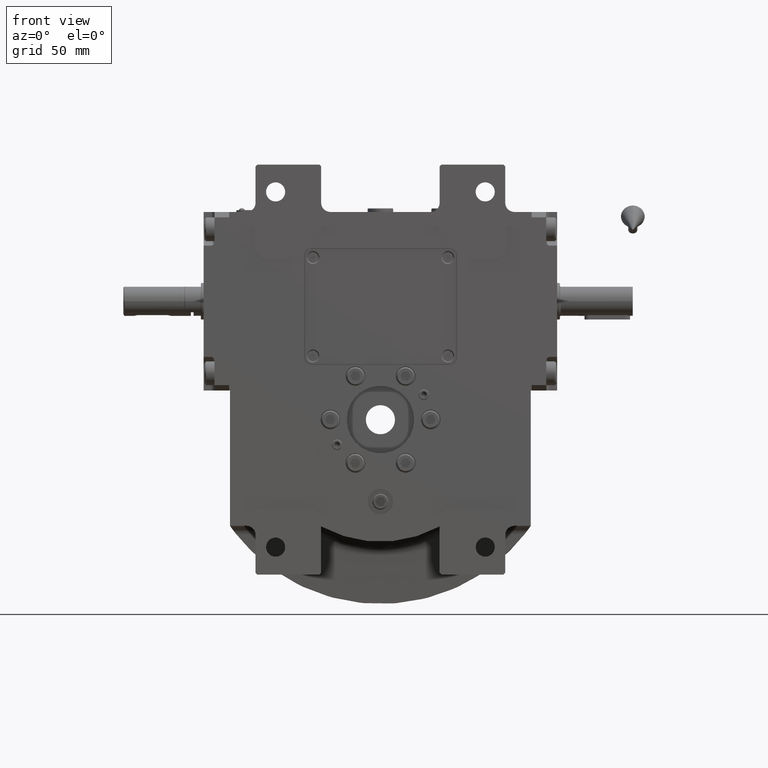
[diagram: clean part render]
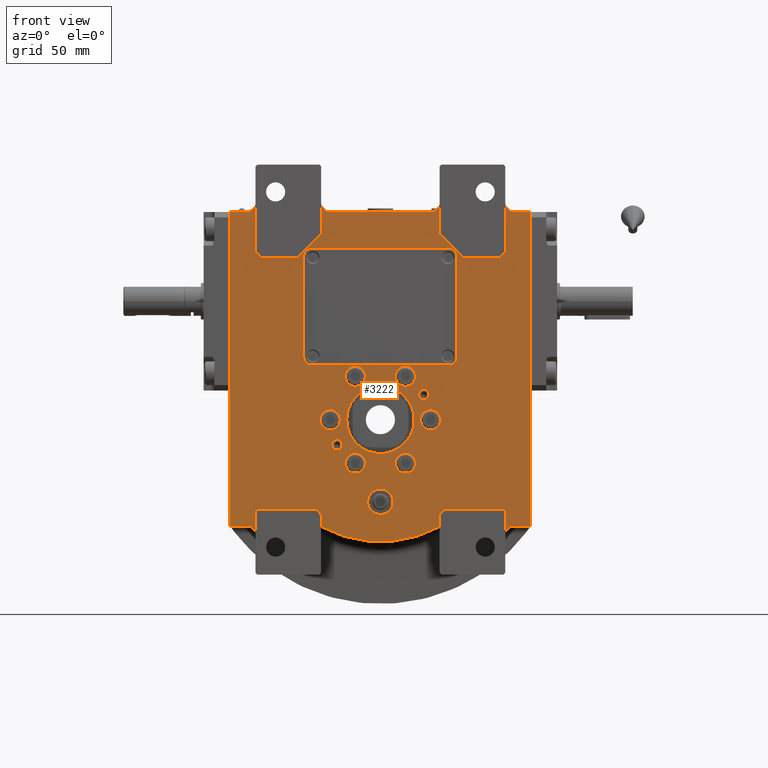
[diagram: same view with one face highlighted and labeled with its STEP entity id]
A machine part, front view. The second image highlights one B-rep face of the part: STEP entity #3222.
In plain terms, the highlighted planar face has unit normal (0, 1, 0).
Its self-contained STEP definition (entity closure, byte-faithful):
#24 = CARTESIAN_POINT ( 'NONE',  ( 42.00000000000000000, -40.50000000000000000, 90.00000000000000000 ) ) ;
#245 = EDGE_CURVE ( 'NONE', #5190, #40231, #46490, .T. ) ;
#247 = DIRECTION ( 'NONE',  ( 0.000000000000000000, -1.000000000000000000, 0.000000000000000000 ) ) ;
#300 = VERTEX_POINT ( 'NONE', #8286 ) ;
#379 = VECTOR ( 'NONE', #11559, 1000.000000000000000 ) ;
#474 = LINE ( 'NONE', #55943, #31714 ) ;
#592 = CARTESIAN_POINT ( 'NONE',  ( -68.50000000000000000, -40.50000000000000000, 119.0000000000000000 ) ) ;
#600 = ORIENTED_EDGE ( 'NONE', *, *, #63679, .F. ) ;
#713 = DIRECTION ( 'NONE',  ( 0.000000000000000000, -1.000000000000000000, 0.000000000000000000 ) ) ;
#848 = LINE ( 'NONE', #12011, #69769 ) ;
#873 = CARTESIAN_POINT ( 'NONE',  ( 21.06569860407205041, -40.50000000000000000, 13.75000000000000000 ) ) ;
#1004 = DIRECTION ( 'NONE',  ( 1.000000000000000000, 0.000000000000000000, -6.308085367188389255E-16 ) ) ;
#1011 = LINE ( 'NONE', #29472, #27171 ) ;
#1086 = DIRECTION ( 'NONE',  ( 0.7071067811865474617, 0.000000000000000000, -0.7071067811865474617 ) ) ;
#1091 = VERTEX_POINT ( 'NONE', #26213 ) ;
#1191 = CIRCLE ( 'NONE', #26494, 5.000000000000004441 ) ;
#1262 = DIRECTION ( 'NONE',  ( 0.000000000000000000, -1.000000000000000000, 0.000000000000000000 ) ) ;
#1547 = ORIENTED_EDGE ( 'NONE', *, *, #245, .F. ) ;
#1940 = CARTESIAN_POINT ( 'NONE',  ( -45.49999999999939604, -40.50000000000000000, 89.00000000000000000 ) ) ;
#1996 = ORIENTED_EDGE ( 'NONE', *, *, #22849, .F. ) ;
#1999 = CARTESIAN_POINT ( 'NONE',  ( -67.50000000000000000, -40.50000000000000000, -49.00000000000000000 ) ) ;
#2651 = EDGE_LOOP ( 'NONE', ( #54769, #46704 ) ) ;
#2800 = AXIS2_PLACEMENT_3D ( 'NONE', #61863, #39553, #6763 ) ;
#2809 = CARTESIAN_POINT ( 'NONE',  ( 13.75000000000000000, -40.50000000000000000, -23.81569860407205397 ) ) ;
#2886 = DIRECTION ( 'NONE',  ( -1.000000000000000000, 0.000000000000000000, -3.840771544649190407E-16 ) ) ;
#3024 = DIRECTION ( 'NONE',  ( 3.469446951953611033E-15, 0.000000000000000000, 1.000000000000000000 ) ) ;
#3152 = CIRCLE ( 'NONE', #49182, 5.000000000000004441 ) ;
#3222 = ADVANCED_FACE ( 'NONE', ( #50575, #12407, #12750, #13114, #67131, #45869, #23191, #34746, #39791, #23552, #18154, #17801 ), #22489, .F. ) ;
#3249 = VERTEX_POINT ( 'NONE', #69612 ) ;
#3368 = DIRECTION ( 'NONE',  ( -1.000000000000000000, 0.000000000000000000, 0.000000000000000000 ) ) ;
#3659 = AXIS2_PLACEMENT_3D ( 'NONE', #51677, #30802, #46653 ) ;
#3665 = DIRECTION ( 'NONE',  ( 1.000000000000000000, 0.000000000000000000, 1.614869854000229219E-16 ) ) ;
#3960 = AXIS2_PLACEMENT_3D ( 'NONE', #17941, #6772, #56460 ) ;
#4133 = VECTOR ( 'NONE', #34706, 1000.000000000000000 ) ;
#4147 = ORIENTED_EDGE ( 'NONE', *, *, #37273, .F. ) ;
#4193 = VERTEX_POINT ( 'NONE', #59979 ) ;
#4197 = CARTESIAN_POINT ( 'NONE',  ( 73.50000000000000000, -40.50000000000000000, -63.26448317800490173 ) ) ;
#4243 = ORIENTED_EDGE ( 'NONE', *, *, #30591, .F. ) ;
#4405 = ORIENTED_EDGE ( 'NONE', *, *, #27927, .F. ) ;
#4411 = LINE ( 'NONE', #42959, #18126 ) ;
#4423 = CARTESIAN_POINT ( 'NONE',  ( 68.50000000000000000, -40.50000000000000000, -50.00000000000000000 ) ) ;
#4526 = DIRECTION ( 'NONE',  ( 0.000000000000000000, 0.000000000000000000, -1.000000000000000000 ) ) ;
#4605 = ORIENTED_EDGE ( 'NONE', *, *, #51840, .F. ) ;
#4628 = CIRCLE ( 'NONE', #51771, 5.500000000000000000 ) ;
#4698 = CARTESIAN_POINT ( 'NONE',  ( 73.50000000000000000, -40.50000000000000000, -58.26448317800490173 ) ) ;
#5058 = VECTOR ( 'NONE', #70704, 1000.000000000000000 ) ;
#5190 = VERTEX_POINT ( 'NONE', #66965 ) ;
#5231 = CARTESIAN_POINT ( 'NONE',  ( 45.49999999999939604, -40.50000000000000000, 89.00000000000000000 ) ) ;
#5318 = DIRECTION ( 'NONE',  ( -1.000000000000000000, 0.000000000000000000, -1.614869854000229219E-16 ) ) ;
#5377 = VERTEX_POINT ( 'NONE', #17417 ) ;
#5668 = VECTOR ( 'NONE', #23029, 1000.000000000000000 ) ;
#5687 = CARTESIAN_POINT ( 'NONE',  ( 82.50000000000000000, -40.50000000000000000, -58.26448317800490173 ) ) ;
#5745 = AXIS2_PLACEMENT_3D ( 'NONE', #64246, #36894, #21027 ) ;
#5849 = VERTEX_POINT ( 'NONE', #53936 ) ;
#5906 = VERTEX_POINT ( 'NONE', #9652 ) ;
#5987 = DIRECTION ( 'NONE',  ( -0.4850746268656720428, 0.000000000000000000, -0.8744727590789371785 ) ) ;
#6015 = ORIENTED_EDGE ( 'NONE', *, *, #63633, .F. ) ;
#6087 = CIRCLE ( 'NONE', #54435, 5.500000000000000000 ) ;
#6267 = VERTEX_POINT ( 'NONE', #42692 ) ;
#6490 = ORIENTED_EDGE ( 'NONE', *, *, #49795, .T. ) ;
#6598 = DIRECTION ( 'NONE',  ( 0.7071067811865474617, 0.000000000000000000, 0.7071067811865474617 ) ) ;
#6733 = VECTOR ( 'NONE', #24688, 1000.000000000000000 ) ;
#6763 = DIRECTION ( 'NONE',  ( -1.000000000000000000, 0.000000000000000000, 0.000000000000000000 ) ) ;
#6772 = DIRECTION ( 'NONE',  ( 0.000000000000000000, 1.000000000000000000, 0.000000000000000000 ) ) ;
#6824 = EDGE_LOOP ( 'NONE', ( #4243, #4405 ) ) ;
#7058 = AXIS2_PLACEMENT_3D ( 'NONE', #26217, #247, #5318 ) ;
#7128 = CARTESIAN_POINT ( 'NONE',  ( 32.50000000000000000, -40.50000000000000000, -52.00000000000000000 ) ) ;
#7365 = EDGE_CURVE ( 'NONE', #3249, #58836, #46698, .T. ) ;
#7523 = CARTESIAN_POINT ( 'NONE',  ( 0.000000000000000000, -40.50000000000000000, 1.776356839400249676E-15 ) ) ;
#7618 = EDGE_CURVE ( 'NONE', #58836, #65277, #10630, .T. ) ;
#7709 = ORIENTED_EDGE ( 'NONE', *, *, #57063, .T. ) ;
#7790 = EDGE_CURVE ( 'NONE', #70838, #59808, #50571, .T. ) ;
#7803 = VERTEX_POINT ( 'NONE', #51634 ) ;
#7932 = CARTESIAN_POINT ( 'NONE',  ( -42.00000000000000000, -40.50000000000000000, 34.00000000000000000 ) ) ;
#8278 = LINE ( 'NONE', #64079, #40953 ) ;
#8286 = CARTESIAN_POINT ( 'NONE',  ( -82.50000000000000000, -40.50000000000000000, 114.0000000000000000 ) ) ;
#8381 = CARTESIAN_POINT ( 'NONE',  ( 67.50000000000000000, -40.50000000000000000, -49.00000000000000000 ) ) ;
#8512 = EDGE_CURVE ( 'NONE', #59808, #5377, #25589, .T. ) ;
#8520 = ORIENTED_EDGE ( 'NONE', *, *, #19499, .F. ) ;
#8535 = DIRECTION ( 'NONE',  ( 0.000000000000000000, 0.000000000000000000, 1.000000000000000000 ) ) ;
#8542 = CARTESIAN_POINT ( 'NONE',  ( -32.50000000000000000, -40.50000000000000000, -58.58967485828879518 ) ) ;
#8557 = EDGE_CURVE ( 'NONE', #6267, #56995, #50232, .T. ) ;
#8720 = DIRECTION ( 'NONE',  ( 0.000000000000000000, 1.000000000000000000, 0.000000000000000000 ) ) ;
#8821 = AXIS2_PLACEMENT_3D ( 'NONE', #37726, #38060, #5987 ) ;
#8941 = EDGE_CURVE ( 'NONE', #31464, #24775, #47135, .T. ) ;
#8955 = AXIS2_PLACEMENT_3D ( 'NONE', #34927, #56887, #46071 ) ;
#8992 = DIRECTION ( 'NONE',  ( 0.000000000000000000, 0.000000000000000000, 1.000000000000000000 ) ) ;
#9026 = EDGE_LOOP ( 'NONE', ( #12116, #36599 ) ) ;
#9090 = CARTESIAN_POINT ( 'NONE',  ( -68.50000000000000000, -40.50000000000000000, -63.26448317800490173 ) ) ;
#9155 = CARTESIAN_POINT ( 'NONE',  ( 38.00000000000000000, -40.50000000000000000, 94.00000000000000000 ) ) ;
#9479 = VECTOR ( 'NONE', #10995, 1000.000000000000000 ) ;
#9486 = VECTOR ( 'NONE', #1086, 1000.000000000000114 ) ;
#9619 = DIRECTION ( 'NONE',  ( 1.000000000000000000, 0.000000000000000000, 0.000000000000000000 ) ) ;
#9652 = CARTESIAN_POINT ( 'NONE',  ( -8.250000000000000000, -40.50000000000000000, 23.81569860407205397 ) ) ;
#9667 = LINE ( 'NONE', #10038, #58989 ) ;
#9774 = CARTESIAN_POINT ( 'NONE',  ( 73.50000000000000000, -40.50000000000000000, 119.0000000000000000 ) ) ;
#10038 = CARTESIAN_POINT ( 'NONE',  ( -27.49999999999934630, -40.50000000000000000, 114.0000000000000000 ) ) ;
#10115 = VERTEX_POINT ( 'NONE', #64983 ) ;
#10155 = CARTESIAN_POINT ( 'NONE',  ( 27.50000000000000000, -40.50000000000000000, -8.881784197001250351E-16 ) ) ;
#10453 = VECTOR ( 'NONE', #38983, 1000.000000000000000 ) ;
#10630 = LINE ( 'NONE', #5231, #9479 ) ;
#10643 = VERTEX_POINT ( 'NONE', #30730 ) ;
#10648 = VERTEX_POINT ( 'NONE', #9090 ) ;
#10652 = ORIENTED_EDGE ( 'NONE', *, *, #27456, .F. ) ;
#10822 = CARTESIAN_POINT ( 'NONE',  ( 13.75000000000000000, -40.50000000000000000, 23.81569860407205397 ) ) ;
#10995 = DIRECTION ( 'NONE',  ( 1.000000000000000000, 0.000000000000000000, 0.000000000000000000 ) ) ;
#11045 = LINE ( 'NONE', #64705, #13382 ) ;
#11386 = CARTESIAN_POINT ( 'NONE',  ( -13.75000000000000000, -40.50000000000000000, -23.81569860407205397 ) ) ;
#11399 = CARTESIAN_POINT ( 'NONE',  ( 45.49999999999939604, -40.50000000000000000, 89.00000000000000000 ) ) ;
#11441 = CARTESIAN_POINT ( 'NONE',  ( -19.25000000000000000, -40.50000000000000000, -23.81569860407205397 ) ) ;
#11559 = DIRECTION ( 'NONE',  ( 0.000000000000000000, 0.000000000000000000, -1.000000000000000000 ) ) ;
#11603 = CARTESIAN_POINT ( 'NONE',  ( 42.00000000000000000, -40.50000000000000000, 34.00000000000000000 ) ) ;
#11662 = ORIENTED_EDGE ( 'NONE', *, *, #31459, .F. ) ;
#11740 = VERTEX_POINT ( 'NONE', #18469 ) ;
#11809 = VERTEX_POINT ( 'NONE', #43309 ) ;
#11833 = DIRECTION ( 'NONE',  ( 0.000000000000000000, -1.000000000000000000, 0.000000000000000000 ) ) ;
#11873 = DIRECTION ( 'NONE',  ( -1.000000000000000000, 0.000000000000000000, -6.459479416000907016E-16 ) ) ;
#12011 = CARTESIAN_POINT ( 'NONE',  ( 82.50000000000000000, -40.50000000000000000, 114.0000000000000000 ) ) ;
#12116 = ORIENTED_EDGE ( 'NONE', *, *, #28278, .T. ) ;
#12219 = VERTEX_POINT ( 'NONE', #56943 ) ;
#12407 = FACE_OUTER_BOUND ( 'NONE', #28026, .T. ) ;
#12517 = CARTESIAN_POINT ( 'NONE',  ( -7.000000000000000000, -40.50000000000000000, -45.00000000000000000 ) ) ;
#12586 = VERTEX_POINT ( 'NONE', #70119 ) ;
#12712 = LINE ( 'NONE', #8381, #4133 ) ;
#12750 = FACE_BOUND ( 'NONE', #17845, .T. ) ;
#12820 = EDGE_CURVE ( 'NONE', #62971, #68017, #58142, .T. ) ;
#12965 = CARTESIAN_POINT ( 'NONE',  ( 1.776356839400249676E-15, -40.50000000000000000, 7.105427357600998703E-15 ) ) ;
#13114 = FACE_BOUND ( 'NONE', #9026, .T. ) ;
#13295 = CARTESIAN_POINT ( 'NONE',  ( 42.00000000000000000, -40.50000000000000000, 34.00000000000000000 ) ) ;
#13382 = VECTOR ( 'NONE', #9619, 1000.000000000000000 ) ;
#14074 = VERTEX_POINT ( 'NONE', #23921 ) ;
#14291 = AXIS2_PLACEMENT_3D ( 'NONE', #35943, #20672, #57903 ) ;
#14694 = DIRECTION ( 'NONE',  ( -1.734723475976807094E-15, 0.000000000000000000, -1.000000000000000000 ) ) ;
#14794 = DIRECTION ( 'NONE',  ( 0.000000000000000000, 0.000000000000000000, 1.000000000000000000 ) ) ;
#15025 = ORIENTED_EDGE ( 'NONE', *, *, #65466, .F. ) ;
#15081 = AXIS2_PLACEMENT_3D ( 'NONE', #53593, #30215, #14694 ) ;
#15122 = AXIS2_PLACEMENT_3D ( 'NONE', #33677, #45537, #18494 ) ;
#15633 = ORIENTED_EDGE ( 'NONE', *, *, #58756, .T. ) ;
#15746 = CARTESIAN_POINT ( 'NONE',  ( -82.50000000000000000, -40.50000000000000000, -58.26448317800490173 ) ) ;
#15861 = ORIENTED_EDGE ( 'NONE', *, *, #8512, .F. ) ;
#15912 = ORIENTED_EDGE ( 'NONE', *, *, #36651, .F. ) ;
#15947 = LINE ( 'NONE', #71017, #10453 ) ;
#15992 = DIRECTION ( 'NONE',  ( 0.000000000000000000, 1.000000000000000000, 0.000000000000000000 ) ) ;
#16034 = EDGE_CURVE ( 'NONE', #300, #5849, #26701, .T. ) ;
#16261 = CARTESIAN_POINT ( 'NONE',  ( -38.00000000000000000, -40.50000000000000000, 30.00000000000000000 ) ) ;
#16695 = EDGE_CURVE ( 'NONE', #11740, #5849, #35032, .T. ) ;
#16914 = VECTOR ( 'NONE', #20945, 1000.000000000000000 ) ;
#16974 = LINE ( 'NONE', #28495, #38634 ) ;
#17072 = VECTOR ( 'NONE', #17148, 1000.000000000000000 ) ;
#17075 = CIRCLE ( 'NONE', #23955, 5.500000000000000000 ) ;
#17148 = DIRECTION ( 'NONE',  ( 0.000000000000000000, 0.000000000000000000, -1.000000000000000000 ) ) ;
#17417 = CARTESIAN_POINT ( 'NONE',  ( -32.49999999999934630, -40.50000000000000000, 119.0000000000000000 ) ) ;
#17500 = AXIS2_PLACEMENT_3D ( 'NONE', #53713, #24934, #63433 ) ;
#17549 = VECTOR ( 'NONE', #4526, 1000.000000000000000 ) ;
#17801 = FACE_BOUND ( 'NONE', #44447, .T. ) ;
#17845 = EDGE_LOOP ( 'NONE', ( #69452, #67715, #17958, #66331, #1996, #45579, #67989, #6015 ) ) ;
#17941 = CARTESIAN_POINT ( 'NONE',  ( -73.50000000000000000, -40.50000000000000000, 119.0000000000000000 ) ) ;
#17958 = ORIENTED_EDGE ( 'NONE', *, *, #37854, .F. ) ;
#18126 = VECTOR ( 'NONE', #8992, 1000.000000000000000 ) ;
#18154 = FACE_BOUND ( 'NONE', #44518, .T. ) ;
#18194 = EDGE_CURVE ( 'NONE', #5906, #46955, #67181, .T. ) ;
#18351 = EDGE_CURVE ( 'NONE', #24775, #7803, #63738, .T. ) ;
#18469 = CARTESIAN_POINT ( 'NONE',  ( -68.50000000000000000, -40.50000000000000000, 119.0000000000000000 ) ) ;
#18494 = DIRECTION ( 'NONE',  ( 1.000000000000000000, 0.000000000000000000, 0.000000000000000000 ) ) ;
#18577 = DIRECTION ( 'NONE',  ( 0.7071067811865474617, 0.000000000000000000, -0.7071067811865474617 ) ) ;
#18995 = CARTESIAN_POINT ( 'NONE',  ( 32.50000000000000000, -40.50000000000000000, -52.00000000000000000 ) ) ;
#19056 = CARTESIAN_POINT ( 'NONE',  ( -68.50000000000000000, -40.50000000000000000, 92.00000000000000000 ) ) ;
#19499 = EDGE_CURVE ( 'NONE', #40970, #42236, #22977, .T. ) ;
#19509 = VECTOR ( 'NONE', #48002, 1000.000000000000000 ) ;
#20294 = CARTESIAN_POINT ( 'NONE',  ( -32.50000000000000000, -40.50000000000000000, -52.00000000000000000 ) ) ;
#20672 = DIRECTION ( 'NONE',  ( 0.000000000000000000, -1.000000000000000000, 0.000000000000000000 ) ) ;
#20945 = DIRECTION ( 'NONE',  ( 0.000000000000000000, 0.000000000000000000, -1.000000000000000000 ) ) ;
#21027 = DIRECTION ( 'NONE',  ( 0.000000000000000000, 0.000000000000000000, 1.000000000000000000 ) ) ;
#21519 = VERTEX_POINT ( 'NONE', #59951 ) ;
#21595 = CARTESIAN_POINT ( 'NONE',  ( -35.50000000000000000, -40.50000000000000000, -49.00000000000000000 ) ) ;
#21723 = CARTESIAN_POINT ( 'NONE',  ( -27.50000000000000000, -40.50000000000000000, 3.552713678800499352E-15 ) ) ;
#22069 = EDGE_CURVE ( 'NONE', #39486, #21519, #4411, .T. ) ;
#22254 = CARTESIAN_POINT ( 'NONE',  ( 67.50000000000000000, -40.50000000000000000, -49.00000000000000000 ) ) ;
#22429 = DIRECTION ( 'NONE',  ( 1.000000000000000000, 0.000000000000000000, -6.459479416000907016E-16 ) ) ;
#22477 = ORIENTED_EDGE ( 'NONE', *, *, #60850, .F. ) ;
#22489 = PLANE ( 'NONE',  #15122 ) ;
#22546 = VERTEX_POINT ( 'NONE', #5687 ) ;
#22639 = VECTOR ( 'NONE', #63810, 1000.000000000000000 ) ;
#22835 = EDGE_LOOP ( 'NONE', ( #71198, #42033 ) ) ;
#22849 = EDGE_CURVE ( 'NONE', #7803, #61791, #48766, .T. ) ;
#22977 = LINE ( 'NONE', #7128, #43147 ) ;
#23029 = DIRECTION ( 'NONE',  ( 0.000000000000000000, 0.000000000000000000, 1.000000000000000000 ) ) ;
#23191 = FACE_BOUND ( 'NONE', #6824, .T. ) ;
#23232 = CIRCLE ( 'NONE', #63493, 18.50000000000000000 ) ;
#23268 = VERTEX_POINT ( 'NONE', #58764 ) ;
#23316 = DIRECTION ( 'NONE',  ( -0.7071067811865474617, 0.000000000000000000, 0.7071067811865474617 ) ) ;
#23552 = FACE_BOUND ( 'NONE', #40199, .T. ) ;
#23649 = CIRCLE ( 'NONE', #58178, 5.500000000000001776 ) ;
#23689 = CARTESIAN_POINT ( 'NONE',  ( -13.75000000000000000, -40.50000000000000000, 23.81569860407205397 ) ) ;
#23921 = CARTESIAN_POINT ( 'NONE',  ( -42.00000000000000000, -40.50000000000000000, 90.00000000000000000 ) ) ;
#23955 = AXIS2_PLACEMENT_3D ( 'NONE', #26052, #42623, #3368 ) ;
#24342 = DIRECTION ( 'NONE',  ( 0.000000000000000000, 1.000000000000000000, 0.000000000000000000 ) ) ;
#24522 = ORIENTED_EDGE ( 'NONE', *, *, #18194, .F. ) ;
#24629 = AXIS2_PLACEMENT_3D ( 'NONE', #23689, #11833, #1004 ) ;
#24688 = DIRECTION ( 'NONE',  ( 0.000000000000000000, 0.000000000000000000, 1.000000000000000000 ) ) ;
#24709 = CIRCLE ( 'NONE', #29161, 2.749999999999999112 ) ;
#24739 = CIRCLE ( 'NONE', #59249, 5.500000000000001776 ) ;
#24775 = VERTEX_POINT ( 'NONE', #24 ) ;
#24785 = CARTESIAN_POINT ( 'NONE',  ( -45.49999999999939604, -40.50000000000000000, 89.00000000000000000 ) ) ;
#24934 = DIRECTION ( 'NONE',  ( 0.000000000000000000, -1.000000000000000000, 0.000000000000000000 ) ) ;
#25035 = CARTESIAN_POINT ( 'NONE',  ( 68.50000000000000000, -40.50000000000000000, -63.26448317800490173 ) ) ;
#25142 = AXIS2_PLACEMENT_3D ( 'NONE', #25599, #35719, #52645 ) ;
#25149 = DIRECTION ( 'NONE',  ( 0.000000000000000000, -1.000000000000000000, 0.000000000000000000 ) ) ;
#25162 = ORIENTED_EDGE ( 'NONE', *, *, #56811, .T. ) ;
#25264 = EDGE_CURVE ( 'NONE', #1091, #51599, #1011, .T. ) ;
#25328 = CARTESIAN_POINT ( 'NONE',  ( -38.00000000000000000, -40.50000000000000000, 90.00000000000000000 ) ) ;
#25352 = VERTEX_POINT ( 'NONE', #50367 ) ;
#25475 = DIRECTION ( 'NONE',  ( -1.000000000000000000, 0.000000000000000000, 0.000000000000000000 ) ) ;
#25589 = LINE ( 'NONE', #30683, #46133 ) ;
#25599 = CARTESIAN_POINT ( 'NONE',  ( -13.75000000000000000, -40.50000000000000000, -23.81569860407205397 ) ) ;
#25647 = EDGE_CURVE ( 'NONE', #49327, #42236, #39869, .T. ) ;
#25704 = CARTESIAN_POINT ( 'NONE',  ( 18.50000000000000000, -40.50000000000000000, 8.266386305024620034E-16 ) ) ;
#25839 = CIRCLE ( 'NONE', #2800, 5.500000000000000000 ) ;
#26052 = CARTESIAN_POINT ( 'NONE',  ( 13.75000000000000000, -40.50000000000000000, 23.81569860407205397 ) ) ;
#26213 = CARTESIAN_POINT ( 'NONE',  ( -65.50000000000000000, -40.50000000000000000, 89.00000000000000000 ) ) ;
#26217 = CARTESIAN_POINT ( 'NONE',  ( 27.50000000000000000, -40.50000000000000000, 8.881784197001250351E-16 ) ) ;
#26377 = ORIENTED_EDGE ( 'NONE', *, *, #45074, .F. ) ;
#26494 = AXIS2_PLACEMENT_3D ( 'NONE', #4197, #44141, #59302 ) ;
#26533 = DIRECTION ( 'NONE',  ( 1.000000000000000000, 0.000000000000000000, 0.000000000000000000 ) ) ;
#26571 = DIRECTION ( 'NONE',  ( 1.000000000000000000, 0.000000000000000000, 0.000000000000000000 ) ) ;
#26693 = VERTEX_POINT ( 'NONE', #4698 ) ;
#26701 = LINE ( 'NONE', #48682, #22639 ) ;
#26846 = LINE ( 'NONE', #69714, #17549 ) ;
#27171 = VECTOR ( 'NONE', #23316, 1000.000000000000114 ) ;
#27277 = DIRECTION ( 'NONE',  ( -1.000000000000000000, 0.000000000000000000, -1.261617073437678245E-15 ) ) ;
#27456 = EDGE_CURVE ( 'NONE', #56995, #6267, #17075, .T. ) ;
#27665 = ORIENTED_EDGE ( 'NONE', *, *, #66072, .T. ) ;
#27927 = EDGE_CURVE ( 'NONE', #32480, #10115, #35552, .T. ) ;
#28026 = EDGE_LOOP ( 'NONE', ( #54840, #11662, #28771, #28147, #27665, #62849, #49385, #54185, #52313, #45004, #6490, #4605, #63742, #15861, #47341, #41168, #46093, #70817, #69695, #38285, #30631, #15633, #37410, #54974, #66041, #44233, #52983, #30595, #62301, #8520, #25162, #60434, #7709, #26377 ) ) ;
#28147 = ORIENTED_EDGE ( 'NONE', *, *, #42519, .F. ) ;
#28278 = EDGE_CURVE ( 'NONE', #54718, #12586, #41161, .T. ) ;
#28495 = CARTESIAN_POINT ( 'NONE',  ( 68.50000000000000000, -40.50000000000000000, 92.00000000000000000 ) ) ;
#28564 = DIRECTION ( 'NONE',  ( -3.299775891822714988E-16, 0.000000000000000000, -1.000000000000000000 ) ) ;
#28771 = ORIENTED_EDGE ( 'NONE', *, *, #42985, .F. ) ;
#28902 = EDGE_LOOP ( 'NONE', ( #24522, #60240 ) ) ;
#29161 = AXIS2_PLACEMENT_3D ( 'NONE', #35537, #24342, #34472 ) ;
#29205 = CARTESIAN_POINT ( 'NONE',  ( 67.50000000000000000, -40.50000000000000000, -49.00000000000000000 ) ) ;
#29274 = LINE ( 'NONE', #67073, #57702 ) ;
#29399 = AXIS2_PLACEMENT_3D ( 'NONE', #38794, #32688, #27277 ) ;
#29472 = CARTESIAN_POINT ( 'NONE',  ( -65.50000000000000000, -40.50000000000000000, 89.00000000000000000 ) ) ;
#29669 = ORIENTED_EDGE ( 'NONE', *, *, #51698, .F. ) ;
#29964 = CARTESIAN_POINT ( 'NONE',  ( -73.50000000000000000, -40.50000000000000000, -58.26448317800490173 ) ) ;
#30006 = VERTEX_POINT ( 'NONE', #42822 ) ;
#30215 = DIRECTION ( 'NONE',  ( 0.000000000000000000, -1.000000000000000000, 0.000000000000000000 ) ) ;
#30474 = CIRCLE ( 'NONE', #31619, 2.749999999999999112 ) ;
#30591 = EDGE_CURVE ( 'NONE', #10115, #32480, #4628, .T. ) ;
#30595 = ORIENTED_EDGE ( 'NONE', *, *, #35576, .F. ) ;
#30631 = ORIENTED_EDGE ( 'NONE', *, *, #48691, .F. ) ;
#30683 = CARTESIAN_POINT ( 'NONE',  ( -32.49999999999934630, -40.50000000000000000, 102.0000000000000000 ) ) ;
#30730 = CARTESIAN_POINT ( 'NONE',  ( 19.25000000000000000, -40.50000000000000000, -23.81569860407205397 ) ) ;
#30802 = DIRECTION ( 'NONE',  ( 0.000000000000000000, -1.000000000000000000, 0.000000000000000000 ) ) ;
#30852 = CARTESIAN_POINT ( 'NONE',  ( 65.50000000000000000, -40.50000000000000000, 89.00000000000000000 ) ) ;
#30919 = EDGE_CURVE ( 'NONE', #32840, #10648, #59802, .T. ) ;
#31374 = EDGE_CURVE ( 'NONE', #61791, #14074, #63325, .T. ) ;
#31458 = VERTEX_POINT ( 'NONE', #4423 ) ;
#31459 = EDGE_CURVE ( 'NONE', #22546, #26693, #15947, .T. ) ;
#31464 = VERTEX_POINT ( 'NONE', #11603 ) ;
#31619 = AXIS2_PLACEMENT_3D ( 'NONE', #54623, #71139, #42043 ) ;
#31714 = VECTOR ( 'NONE', #6598, 1000.000000000000114 ) ;
#32127 = DIRECTION ( 'NONE',  ( 0.000000000000000000, -1.000000000000000000, 0.000000000000000000 ) ) ;
#32271 = VERTEX_POINT ( 'NONE', #47497 ) ;
#32468 = LINE ( 'NONE', #54434, #9486 ) ;
#32480 = VERTEX_POINT ( 'NONE', #11441 ) ;
#32604 = VERTEX_POINT ( 'NONE', #20294 ) ;
#32688 = DIRECTION ( 'NONE',  ( 0.000000000000000000, 1.000000000000000000, 0.000000000000000000 ) ) ;
#32764 = EDGE_LOOP ( 'NONE', ( #15912, #4147 ) ) ;
#32840 = VERTEX_POINT ( 'NONE', #29964 ) ;
#33424 = CARTESIAN_POINT ( 'NONE',  ( 68.50000000000000000, -40.50000000000000000, 92.00000000000000000 ) ) ;
#33677 = CARTESIAN_POINT ( 'NONE',  ( 0.000000000000000000, -40.50000000000000000, 0.000000000000000000 ) ) ;
#33795 = CARTESIAN_POINT ( 'NONE',  ( -21.06569860407205041, -40.50000000000000000, -13.75000000000000000 ) ) ;
#34276 = VECTOR ( 'NONE', #26533, 1000.000000000000000 ) ;
#34472 = DIRECTION ( 'NONE',  ( -1.000000000000000000, 0.000000000000000000, 0.000000000000000000 ) ) ;
#34706 = DIRECTION ( 'NONE',  ( -1.000000000000000000, 0.000000000000000000, 0.000000000000000000 ) ) ;
#34746 = FACE_BOUND ( 'NONE', #2651, .T. ) ;
#34875 = EDGE_CURVE ( 'NONE', #12586, #54718, #24709, .T. ) ;
#34927 = CARTESIAN_POINT ( 'NONE',  ( -23.81569860407205397, -40.50000000000000000, -13.75000000000000000 ) ) ;
#35032 = CIRCLE ( 'NONE', #3960, 5.000000000000004441 ) ;
#35104 = DIRECTION ( 'NONE',  ( 0.7071067811865480168, 0.000000000000000000, 0.7071067811865470176 ) ) ;
#35537 = CARTESIAN_POINT ( 'NONE',  ( -23.81569860407205397, -40.50000000000000000, -13.75000000000000000 ) ) ;
#35552 = CIRCLE ( 'NONE', #25142, 5.500000000000000000 ) ;
#35576 = EDGE_CURVE ( 'NONE', #49327, #32604, #39891, .T. ) ;
#35668 = DIRECTION ( 'NONE',  ( 0.000000000000000000, -1.000000000000000000, 0.000000000000000000 ) ) ;
#35719 = DIRECTION ( 'NONE',  ( 0.000000000000000000, -1.000000000000000000, 0.000000000000000000 ) ) ;
#35822 = CIRCLE ( 'NONE', #15081, 4.000000000000000000 ) ;
#35943 = CARTESIAN_POINT ( 'NONE',  ( 38.00000000000000000, -40.50000000000000000, 90.00000000000000000 ) ) ;
#36599 = ORIENTED_EDGE ( 'NONE', *, *, #34875, .T. ) ;
#36651 = EDGE_CURVE ( 'NONE', #58523, #50400, #47442, .T. ) ;
#36800 = EDGE_CURVE ( 'NONE', #61895, #32604, #32468, .T. ) ;
#36894 = DIRECTION ( 'NONE',  ( 0.000000000000000000, 1.000000000000000000, 0.000000000000000000 ) ) ;
#37033 = CIRCLE ( 'NONE', #3659, 3.999999999999996447 ) ;
#37038 = VECTOR ( 'NONE', #35104, 1000.000000000000000 ) ;
#37102 = CARTESIAN_POINT ( 'NONE',  ( -38.00000000000000000, -40.50000000000000000, 94.00000000000000000 ) ) ;
#37167 = LINE ( 'NONE', #64175, #16914 ) ;
#37273 = EDGE_CURVE ( 'NONE', #50400, #58523, #68125, .T. ) ;
#37410 = ORIENTED_EDGE ( 'NONE', *, *, #30919, .T. ) ;
#37627 = CARTESIAN_POINT ( 'NONE',  ( -27.49999999999934630, -40.50000000000000000, 119.0000000000000000 ) ) ;
#37704 = CARTESIAN_POINT ( 'NONE',  ( -65.50000000000000000, -40.50000000000000000, 89.00000000000000000 ) ) ;
#37726 = CARTESIAN_POINT ( 'NONE',  ( -1.065814103640149963E-14, -40.50000000000000000, -4.263256414560599853E-14 ) ) ;
#37854 = EDGE_CURVE ( 'NONE', #14074, #58742, #60888, .T. ) ;
#38060 = DIRECTION ( 'NONE',  ( 0.000000000000000000, -1.000000000000000000, 0.000000000000000000 ) ) ;
#38285 = ORIENTED_EDGE ( 'NONE', *, *, #16034, .F. ) ;
#38292 = DIRECTION ( 'NONE',  ( 0.000000000000000000, -1.000000000000000000, 0.000000000000000000 ) ) ;
#38606 = CARTESIAN_POINT ( 'NONE',  ( -32.49999999999934630, -40.50000000000000000, 102.0000000000000000 ) ) ;
#38629 = VECTOR ( 'NONE', #18577, 1000.000000000000114 ) ;
#38634 = VECTOR ( 'NONE', #59851, 1000.000000000000114 ) ;
#38794 = CARTESIAN_POINT ( 'NONE',  ( 23.81569860407205397, -40.50000000000000000, 13.75000000000000000 ) ) ;
#38983 = DIRECTION ( 'NONE',  ( -1.000000000000000000, 0.000000000000000000, 0.000000000000000000 ) ) ;
#39486 = VERTEX_POINT ( 'NONE', #33424 ) ;
#39553 = DIRECTION ( 'NONE',  ( 0.000000000000000000, -1.000000000000000000, 0.000000000000000000 ) ) ;
#39791 = FACE_BOUND ( 'NONE', #28902, .T. ) ;
#39869 = CIRCLE ( 'NONE', #8821, 66.99999999999998579 ) ;
#39891 = LINE ( 'NONE', #57875, #46142 ) ;
#40199 = EDGE_LOOP ( 'NONE', ( #54911, #10652 ) ) ;
#40231 = VERTEX_POINT ( 'NONE', #25704 ) ;
#40495 = DIRECTION ( 'NONE',  ( 0.000000000000000000, -1.000000000000000000, 0.000000000000000000 ) ) ;
#40685 = CARTESIAN_POINT ( 'NONE',  ( -82.50000000000000000, -40.50000000000000000, -58.26448317800490173 ) ) ;
#40953 = VECTOR ( 'NONE', #52584, 1000.000000000000114 ) ;
#40970 = VERTEX_POINT ( 'NONE', #18995 ) ;
#41161 = CIRCLE ( 'NONE', #8955, 2.749999999999999112 ) ;
#41168 = ORIENTED_EDGE ( 'NONE', *, *, #50801, .F. ) ;
#41222 = EDGE_CURVE ( 'NONE', #68017, #62971, #30474, .T. ) ;
#41235 = DIRECTION ( 'NONE',  ( 1.000000000000000000, 0.000000000000000000, 0.000000000000000000 ) ) ;
#41729 = EDGE_CURVE ( 'NONE', #53117, #44842, #474, .T. ) ;
#42033 = ORIENTED_EDGE ( 'NONE', *, *, #12820, .T. ) ;
#42043 = DIRECTION ( 'NONE',  ( 1.000000000000000000, 0.000000000000000000, 0.000000000000000000 ) ) ;
#42060 = EDGE_CURVE ( 'NONE', #30006, #43592, #23649, .T. ) ;
#42236 = VERTEX_POINT ( 'NONE', #66642 ) ;
#42519 = EDGE_CURVE ( 'NONE', #68309, #25352, #11045, .T. ) ;
#42623 = DIRECTION ( 'NONE',  ( 0.000000000000000000, -1.000000000000000000, 0.000000000000000000 ) ) ;
#42692 = CARTESIAN_POINT ( 'NONE',  ( 19.25000000000000000, -40.50000000000000000, 23.81569860407205397 ) ) ;
#42753 = LINE ( 'NONE', #15746, #34276 ) ;
#42822 = CARTESIAN_POINT ( 'NONE',  ( 33.00000000000000000, -40.50000000000000000, -5.896429304701019523E-16 ) ) ;
#42959 = CARTESIAN_POINT ( 'NONE',  ( 68.50000000000000000, -40.50000000000000000, 92.00000000000000000 ) ) ;
#42985 = EDGE_CURVE ( 'NONE', #25352, #22546, #848, .T. ) ;
#43147 = VECTOR ( 'NONE', #44948, 1000.000000000000000 ) ;
#43309 = CARTESIAN_POINT ( 'NONE',  ( 32.49999999999934630, -40.50000000000000000, 119.0000000000000000 ) ) ;
#43592 = VERTEX_POINT ( 'NONE', #45581 ) ;
#43633 = LINE ( 'NONE', #60205, #19509 ) ;
#43716 = DIRECTION ( 'NONE',  ( 1.387778780781444492E-15, 0.000000000000000000, -1.000000000000000000 ) ) ;
#43849 = EDGE_CURVE ( 'NONE', #4193, #5377, #3152, .T. ) ;
#43948 = DIRECTION ( 'NONE',  ( 1.000000000000000000, 0.000000000000000000, 0.000000000000000000 ) ) ;
#44141 = DIRECTION ( 'NONE',  ( 0.000000000000000000, 1.000000000000000000, 0.000000000000000000 ) ) ;
#44146 = VERTEX_POINT ( 'NONE', #67446 ) ;
#44233 = ORIENTED_EDGE ( 'NONE', *, *, #59683, .F. ) ;
#44447 = EDGE_LOOP ( 'NONE', ( #1547, #29669 ) ) ;
#44518 = EDGE_LOOP ( 'NONE', ( #51965, #600 ) ) ;
#44842 = VERTEX_POINT ( 'NONE', #1999 ) ;
#44948 = DIRECTION ( 'NONE',  ( 0.000000000000000000, 0.000000000000000000, -1.000000000000000000 ) ) ;
#44969 = EDGE_CURVE ( 'NONE', #11740, #51599, #49938, .T. ) ;
#45004 = ORIENTED_EDGE ( 'NONE', *, *, #65274, .F. ) ;
#45074 = EDGE_CURVE ( 'NONE', #51049, #31458, #68248, .T. ) ;
#45537 = DIRECTION ( 'NONE',  ( -0.000000000000000000, 1.000000000000000000, 0.000000000000000000 ) ) ;
#45579 = ORIENTED_EDGE ( 'NONE', *, *, #18351, .F. ) ;
#45581 = CARTESIAN_POINT ( 'NONE',  ( 22.00000000000000000, -40.50000000000000000, 2.041077998578919850E-21 ) ) ;
#45869 = FACE_BOUND ( 'NONE', #49624, .T. ) ;
#46071 = DIRECTION ( 'NONE',  ( 1.000000000000000000, 0.000000000000000000, 0.000000000000000000 ) ) ;
#46093 = ORIENTED_EDGE ( 'NONE', *, *, #25264, .T. ) ;
#46133 = VECTOR ( 'NONE', #14794, 1000.000000000000000 ) ;
#46142 = VECTOR ( 'NONE', #8535, 1000.000000000000000 ) ;
#46490 = CIRCLE ( 'NONE', #52249, 18.50000000000000000 ) ;
#46653 = DIRECTION ( 'NONE',  ( -1.000000000000000000, 0.000000000000000000, 0.000000000000000000 ) ) ;
#46698 = LINE ( 'NONE', #68643, #38629 ) ;
#46704 = ORIENTED_EDGE ( 'NONE', *, *, #55959, .F. ) ;
#46800 = AXIS2_PLACEMENT_3D ( 'NONE', #10822, #59809, #43948 ) ;
#46955 = VERTEX_POINT ( 'NONE', #50479 ) ;
#46994 = CARTESIAN_POINT ( 'NONE',  ( 27.49999999999934630, -40.50000000000000000, 119.0000000000000000 ) ) ;
#47135 = LINE ( 'NONE', #13295, #50140 ) ;
#47341 = ORIENTED_EDGE ( 'NONE', *, *, #7790, .F. ) ;
#47442 = CIRCLE ( 'NONE', #17500, 7.000000000000000000 ) ;
#47497 = CARTESIAN_POINT ( 'NONE',  ( -82.50000000000000000, -40.50000000000000000, -58.26448317800490173 ) ) ;
#48002 = DIRECTION ( 'NONE',  ( -1.000000000000000000, 0.000000000000000000, 0.000000000000000000 ) ) ;
#48028 = DIRECTION ( 'NONE',  ( 0.000000000000000000, -1.000000000000000000, 0.000000000000000000 ) ) ;
#48390 = AXIS2_PLACEMENT_3D ( 'NONE', #25328, #48028, #3024 ) ;
#48591 = CARTESIAN_POINT ( 'NONE',  ( 8.250000000000000000, -40.50000000000000000, 23.81569860407205397 ) ) ;
#48682 = CARTESIAN_POINT ( 'NONE',  ( -82.50000000000000000, -40.50000000000000000, 114.0000000000000000 ) ) ;
#48683 = CARTESIAN_POINT ( 'NONE',  ( -42.00000000000000000, -40.50000000000000000, 90.00000000000000000 ) ) ;
#48691 = EDGE_CURVE ( 'NONE', #32271, #300, #55844, .T. ) ;
#48766 = LINE ( 'NONE', #9155, #5058 ) ;
#49182 = AXIS2_PLACEMENT_3D ( 'NONE', #37627, #15992, #43716 ) ;
#49327 = VERTEX_POINT ( 'NONE', #8542 ) ;
#49385 = ORIENTED_EDGE ( 'NONE', *, *, #70028, .T. ) ;
#49453 = EDGE_CURVE ( 'NONE', #51049, #26693, #1191, .T. ) ;
#49624 = EDGE_LOOP ( 'NONE', ( #15025, #22477 ) ) ;
#49795 = EDGE_CURVE ( 'NONE', #11809, #52297, #67914, .T. ) ;
#49938 = LINE ( 'NONE', #592, #17072 ) ;
#50140 = VECTOR ( 'NONE', #63686, 1000.000000000000000 ) ;
#50232 = CIRCLE ( 'NONE', #46800, 5.500000000000000000 ) ;
#50367 = CARTESIAN_POINT ( 'NONE',  ( 82.50000000000000000, -40.50000000000000000, 114.0000000000000000 ) ) ;
#50400 = VERTEX_POINT ( 'NONE', #12517 ) ;
#50479 = CARTESIAN_POINT ( 'NONE',  ( -19.25000000000000000, -40.50000000000000000, 23.81569860407205397 ) ) ;
#50571 = LINE ( 'NONE', #1940, #37038 ) ;
#50575 = FACE_BOUND ( 'NONE', #32764, .T. ) ;
#50796 = VECTOR ( 'NONE', #59667, 1000.000000000000000 ) ;
#50801 = EDGE_CURVE ( 'NONE', #1091, #70838, #55326, .T. ) ;
#51011 = CIRCLE ( 'NONE', #67096, 5.000000000000004441 ) ;
#51042 = CARTESIAN_POINT ( 'NONE',  ( 73.50000000000000000, -40.50000000000000000, 114.0000000000000000 ) ) ;
#51049 = VERTEX_POINT ( 'NONE', #25035 ) ;
#51083 = EDGE_CURVE ( 'NONE', #58742, #59604, #37033, .T. ) ;
#51265 = EDGE_CURVE ( 'NONE', #59604, #69167, #29274, .T. ) ;
#51599 = VERTEX_POINT ( 'NONE', #19056 ) ;
#51634 = CARTESIAN_POINT ( 'NONE',  ( 38.00000000000000000, -40.50000000000000000, 94.00000000000000000 ) ) ;
#51659 = DIRECTION ( 'NONE',  ( 1.000000000000000000, 0.000000000000000000, -2.775557561562890957E-15 ) ) ;
#51677 = CARTESIAN_POINT ( 'NONE',  ( -38.00000000000000000, -40.50000000000000000, 34.00000000000000000 ) ) ;
#51698 = EDGE_CURVE ( 'NONE', #40231, #5190, #23232, .T. ) ;
#51771 = AXIS2_PLACEMENT_3D ( 'NONE', #11386, #1262, #56031 ) ;
#51840 = EDGE_CURVE ( 'NONE', #4193, #52297, #9667, .T. ) ;
#51965 = ORIENTED_EDGE ( 'NONE', *, *, #42060, .F. ) ;
#52151 = DIRECTION ( 'NONE',  ( 0.000000000000000000, -1.000000000000000000, 0.000000000000000000 ) ) ;
#52249 = AXIS2_PLACEMENT_3D ( 'NONE', #12965, #35668, #2886 ) ;
#52297 = VERTEX_POINT ( 'NONE', #53515 ) ;
#52313 = ORIENTED_EDGE ( 'NONE', *, *, #7365, .F. ) ;
#52584 = DIRECTION ( 'NONE',  ( 0.7071067811865474617, 0.000000000000000000, 0.7071067811865474617 ) ) ;
#52645 = DIRECTION ( 'NONE',  ( -1.000000000000000000, 0.000000000000000000, -6.308085367188389255E-16 ) ) ;
#52652 = DIRECTION ( 'NONE',  ( 0.000000000000000000, 0.000000000000000000, -1.000000000000000000 ) ) ;
#52983 = ORIENTED_EDGE ( 'NONE', *, *, #36800, .T. ) ;
#53117 = VERTEX_POINT ( 'NONE', #71196 ) ;
#53450 = DIRECTION ( 'NONE',  ( 0.000000000000000000, -1.000000000000000000, 0.000000000000000000 ) ) ;
#53515 = CARTESIAN_POINT ( 'NONE',  ( 27.49999999999934630, -40.50000000000000000, 114.0000000000000000 ) ) ;
#53593 = CARTESIAN_POINT ( 'NONE',  ( 38.00000000000000000, -40.50000000000000000, 34.00000000000000000 ) ) ;
#53713 = CARTESIAN_POINT ( 'NONE',  ( -4.440892098500625176E-16, -40.50000000000000000, -45.00000000000000000 ) ) ;
#53936 = CARTESIAN_POINT ( 'NONE',  ( -73.50000000000000000, -40.50000000000000000, 114.0000000000000000 ) ) ;
#54185 = ORIENTED_EDGE ( 'NONE', *, *, #7618, .F. ) ;
#54349 = LINE ( 'NONE', #22254, #55904 ) ;
#54434 = CARTESIAN_POINT ( 'NONE',  ( -35.50000000000000000, -40.50000000000000000, -49.00000000000000000 ) ) ;
#54435 = AXIS2_PLACEMENT_3D ( 'NONE', #62449, #40495, #41235 ) ;
#54623 = CARTESIAN_POINT ( 'NONE',  ( 23.81569860407205397, -40.50000000000000000, 13.75000000000000000 ) ) ;
#54718 = VERTEX_POINT ( 'NONE', #33795 ) ;
#54769 = ORIENTED_EDGE ( 'NONE', *, *, #55642, .F. ) ;
#54840 = ORIENTED_EDGE ( 'NONE', *, *, #49453, .T. ) ;
#54911 = ORIENTED_EDGE ( 'NONE', *, *, #8557, .F. ) ;
#54974 = ORIENTED_EDGE ( 'NONE', *, *, #58330, .F. ) ;
#55205 = CIRCLE ( 'NONE', #63263, 5.500000000000000000 ) ;
#55326 = LINE ( 'NONE', #37704, #50796 ) ;
#55642 = EDGE_CURVE ( 'NONE', #44146, #23268, #67194, .T. ) ;
#55844 = LINE ( 'NONE', #40685, #5668 ) ;
#55904 = VECTOR ( 'NONE', #64782, 1000.000000000000114 ) ;
#55943 = CARTESIAN_POINT ( 'NONE',  ( -68.50000000000000000, -40.50000000000000000, -50.00000000000000000 ) ) ;
#55959 = EDGE_CURVE ( 'NONE', #23268, #44146, #24739, .T. ) ;
#56031 = DIRECTION ( 'NONE',  ( 1.000000000000000000, 0.000000000000000000, 0.000000000000000000 ) ) ;
#56460 = DIRECTION ( 'NONE',  ( 1.000000000000000000, 0.000000000000000000, 0.000000000000000000 ) ) ;
#56811 = EDGE_CURVE ( 'NONE', #40970, #62545, #8278, .T. ) ;
#56887 = DIRECTION ( 'NONE',  ( 0.000000000000000000, 1.000000000000000000, 0.000000000000000000 ) ) ;
#56943 = CARTESIAN_POINT ( 'NONE',  ( 8.250000000000000000, -40.50000000000000000, -23.81569860407205397 ) ) ;
#56995 = VERTEX_POINT ( 'NONE', #48591 ) ;
#57063 = EDGE_CURVE ( 'NONE', #61651, #31458, #54349, .T. ) ;
#57702 = VECTOR ( 'NONE', #66385, 1000.000000000000000 ) ;
#57787 = DIRECTION ( 'NONE',  ( 0.000000000000000000, 1.000000000000000000, 0.000000000000000000 ) ) ;
#57875 = CARTESIAN_POINT ( 'NONE',  ( -32.50000000000000000, -40.50000000000000000, -58.58967485828879518 ) ) ;
#57903 = DIRECTION ( 'NONE',  ( 1.000000000000000000, 0.000000000000000000, 3.469446951953617344E-15 ) ) ;
#58142 = CIRCLE ( 'NONE', #29399, 2.749999999999999112 ) ;
#58178 = AXIS2_PLACEMENT_3D ( 'NONE', #10155, #32127, #3665 ) ;
#58330 = EDGE_CURVE ( 'NONE', #53117, #10648, #37167, .T. ) ;
#58523 = VERTEX_POINT ( 'NONE', #66647 ) ;
#58526 = CARTESIAN_POINT ( 'NONE',  ( 68.50000000000000000, -40.50000000000000000, -63.26448317800490173 ) ) ;
#58729 = AXIS2_PLACEMENT_3D ( 'NONE', #46994, #57787, #51659 ) ;
#58742 = VERTEX_POINT ( 'NONE', #7932 ) ;
#58756 = EDGE_CURVE ( 'NONE', #32271, #32840, #42753, .T. ) ;
#58764 = CARTESIAN_POINT ( 'NONE',  ( -33.00000000000000000, -40.50000000000000000, 1.122594940296405870E-15 ) ) ;
#58836 = VERTEX_POINT ( 'NONE', #11399 ) ;
#58989 = VECTOR ( 'NONE', #26571, 1000.000000000000000 ) ;
#59249 = AXIS2_PLACEMENT_3D ( 'NONE', #66941, #713, #11873 ) ;
#59302 = DIRECTION ( 'NONE',  ( -1.000000000000000000, 0.000000000000000000, 0.000000000000000000 ) ) ;
#59604 = VERTEX_POINT ( 'NONE', #16261 ) ;
#59667 = DIRECTION ( 'NONE',  ( 1.000000000000000000, 0.000000000000000000, 0.000000000000000000 ) ) ;
#59683 = EDGE_CURVE ( 'NONE', #61895, #44842, #43633, .T. ) ;
#59802 = CIRCLE ( 'NONE', #5745, 4.999999999999997335 ) ;
#59808 = VERTEX_POINT ( 'NONE', #38606 ) ;
#59809 = DIRECTION ( 'NONE',  ( 0.000000000000000000, -1.000000000000000000, 0.000000000000000000 ) ) ;
#59851 = DIRECTION ( 'NONE',  ( -0.7071067811865474617, 0.000000000000000000, -0.7071067811865474617 ) ) ;
#59951 = CARTESIAN_POINT ( 'NONE',  ( 68.50000000000000000, -40.50000000000000000, 119.0000000000000000 ) ) ;
#59979 = CARTESIAN_POINT ( 'NONE',  ( -27.49999999999934630, -40.50000000000000000, 114.0000000000000000 ) ) ;
#60205 = CARTESIAN_POINT ( 'NONE',  ( -35.50000000000000000, -40.50000000000000000, -49.00000000000000000 ) ) ;
#60240 = ORIENTED_EDGE ( 'NONE', *, *, #68338, .F. ) ;
#60434 = ORIENTED_EDGE ( 'NONE', *, *, #69799, .F. ) ;
#60850 = EDGE_CURVE ( 'NONE', #12219, #10643, #55205, .T. ) ;
#60888 = LINE ( 'NONE', #48683, #379 ) ;
#61651 = VERTEX_POINT ( 'NONE', #29205 ) ;
#61791 = VERTEX_POINT ( 'NONE', #37102 ) ;
#61863 = CARTESIAN_POINT ( 'NONE',  ( -13.75000000000000000, -40.50000000000000000, 23.81569860407205397 ) ) ;
#61895 = VERTEX_POINT ( 'NONE', #21595 ) ;
#62301 = ORIENTED_EDGE ( 'NONE', *, *, #25647, .T. ) ;
#62449 = CARTESIAN_POINT ( 'NONE',  ( 13.75000000000000000, -40.50000000000000000, -23.81569860407205397 ) ) ;
#62545 = VERTEX_POINT ( 'NONE', #64369 ) ;
#62849 = ORIENTED_EDGE ( 'NONE', *, *, #22069, .F. ) ;
#62971 = VERTEX_POINT ( 'NONE', #873 ) ;
#63263 = AXIS2_PLACEMENT_3D ( 'NONE', #2809, #52151, #25475 ) ;
#63325 = CIRCLE ( 'NONE', #48390, 4.000000000000003553 ) ;
#63433 = DIRECTION ( 'NONE',  ( 1.000000000000000000, 0.000000000000000000, 0.000000000000000000 ) ) ;
#63493 = AXIS2_PLACEMENT_3D ( 'NONE', #7523, #25149, #68376 ) ;
#63633 = EDGE_CURVE ( 'NONE', #69167, #31464, #35822, .T. ) ;
#63679 = EDGE_CURVE ( 'NONE', #43592, #30006, #65711, .T. ) ;
#63686 = DIRECTION ( 'NONE',  ( 0.000000000000000000, 0.000000000000000000, 1.000000000000000000 ) ) ;
#63738 = CIRCLE ( 'NONE', #14291, 3.999999999999996447 ) ;
#63742 = ORIENTED_EDGE ( 'NONE', *, *, #43849, .T. ) ;
#63810 = DIRECTION ( 'NONE',  ( 1.000000000000000000, 0.000000000000000000, 0.000000000000000000 ) ) ;
#64079 = CARTESIAN_POINT ( 'NONE',  ( 32.50000000000000000, -40.50000000000000000, -52.00000000000000000 ) ) ;
#64175 = CARTESIAN_POINT ( 'NONE',  ( -68.50000000000000000, -40.50000000000000000, -50.00000000000000000 ) ) ;
#64246 = CARTESIAN_POINT ( 'NONE',  ( -73.50000000000000000, -40.50000000000000000, -63.26448317800490173 ) ) ;
#64343 = CARTESIAN_POINT ( 'NONE',  ( 38.00000000000000000, -40.50000000000000000, 30.00000000000000000 ) ) ;
#64369 = CARTESIAN_POINT ( 'NONE',  ( 35.50000000000000000, -40.50000000000000000, -49.00000000000000000 ) ) ;
#64421 = CARTESIAN_POINT ( 'NONE',  ( 26.56569860407205041, -40.50000000000000000, 13.75000000000000000 ) ) ;
#64695 = AXIS2_PLACEMENT_3D ( 'NONE', #69989, #53450, #64968 ) ;
#64705 = CARTESIAN_POINT ( 'NONE',  ( 73.50000000000000000, -40.50000000000000000, 114.0000000000000000 ) ) ;
#64782 = DIRECTION ( 'NONE',  ( 0.7071067811865474617, 0.000000000000000000, -0.7071067811865474617 ) ) ;
#64935 = AXIS2_PLACEMENT_3D ( 'NONE', #21723, #38292, #22429 ) ;
#64968 = DIRECTION ( 'NONE',  ( -1.000000000000000000, 0.000000000000000000, 0.000000000000000000 ) ) ;
#64983 = CARTESIAN_POINT ( 'NONE',  ( -8.250000000000000000, -40.50000000000000000, -23.81569860407205397 ) ) ;
#65274 = EDGE_CURVE ( 'NONE', #11809, #3249, #26846, .T. ) ;
#65277 = VERTEX_POINT ( 'NONE', #30852 ) ;
#65466 = EDGE_CURVE ( 'NONE', #10643, #12219, #6087, .T. ) ;
#65711 = CIRCLE ( 'NONE', #7058, 5.500000000000001776 ) ;
#66041 = ORIENTED_EDGE ( 'NONE', *, *, #41729, .T. ) ;
#66072 = EDGE_CURVE ( 'NONE', #68309, #21519, #51011, .T. ) ;
#66331 = ORIENTED_EDGE ( 'NONE', *, *, #31374, .F. ) ;
#66385 = DIRECTION ( 'NONE',  ( 1.000000000000000000, 0.000000000000000000, 0.000000000000000000 ) ) ;
#66642 = CARTESIAN_POINT ( 'NONE',  ( 32.50000000000000000, -40.50000000000000000, -58.58967485828879518 ) ) ;
#66647 = CARTESIAN_POINT ( 'NONE',  ( 7.000000000000000000, -40.50000000000000000, -45.00000000000000000 ) ) ;
#66941 = CARTESIAN_POINT ( 'NONE',  ( -27.50000000000000000, -40.50000000000000000, 3.552713678800499352E-15 ) ) ;
#66965 = CARTESIAN_POINT ( 'NONE',  ( -18.50000000000000000, -40.50000000000000000, 1.581837489976665042E-15 ) ) ;
#67073 = CARTESIAN_POINT ( 'NONE',  ( -38.00000000000000000, -40.50000000000000000, 30.00000000000000000 ) ) ;
#67096 = AXIS2_PLACEMENT_3D ( 'NONE', #9774, #8720, #52652 ) ;
#67131 = FACE_BOUND ( 'NONE', #22835, .T. ) ;
#67181 = CIRCLE ( 'NONE', #24629, 5.500000000000000000 ) ;
#67194 = CIRCLE ( 'NONE', #64935, 5.500000000000001776 ) ;
#67446 = CARTESIAN_POINT ( 'NONE',  ( -22.00000000000000000, -40.50000000000000000, 5.329499687483060376E-16 ) ) ;
#67715 = ORIENTED_EDGE ( 'NONE', *, *, #51083, .F. ) ;
#67914 = CIRCLE ( 'NONE', #58729, 5.000000000000000888 ) ;
#67989 = ORIENTED_EDGE ( 'NONE', *, *, #8941, .F. ) ;
#68017 = VERTEX_POINT ( 'NONE', #64421 ) ;
#68125 = CIRCLE ( 'NONE', #64695, 7.000000000000000000 ) ;
#68248 = LINE ( 'NONE', #58526, #6733 ) ;
#68309 = VERTEX_POINT ( 'NONE', #51042 ) ;
#68338 = EDGE_CURVE ( 'NONE', #46955, #5906, #25839, .T. ) ;
#68376 = DIRECTION ( 'NONE',  ( 1.000000000000000000, 0.000000000000000000, -9.601928861622979716E-17 ) ) ;
#68643 = CARTESIAN_POINT ( 'NONE',  ( 32.49999999999934630, -40.50000000000000000, 102.0000000000000000 ) ) ;
#69167 = VERTEX_POINT ( 'NONE', #64343 ) ;
#69452 = ORIENTED_EDGE ( 'NONE', *, *, #51265, .F. ) ;
#69612 = CARTESIAN_POINT ( 'NONE',  ( 32.49999999999934630, -40.50000000000000000, 102.0000000000000000 ) ) ;
#69695 = ORIENTED_EDGE ( 'NONE', *, *, #16695, .T. ) ;
#69714 = CARTESIAN_POINT ( 'NONE',  ( 32.49999999999934630, -40.50000000000000000, 119.0000000000000000 ) ) ;
#69769 = VECTOR ( 'NONE', #28564, 1000.000000000000000 ) ;
#69799 = EDGE_CURVE ( 'NONE', #61651, #62545, #12712, .T. ) ;
#69989 = CARTESIAN_POINT ( 'NONE',  ( 4.440892098500625176E-16, -40.50000000000000000, -45.00000000000000000 ) ) ;
#70028 = EDGE_CURVE ( 'NONE', #39486, #65277, #16974, .T. ) ;
#70119 = CARTESIAN_POINT ( 'NONE',  ( -26.56569860407205041, -40.50000000000000000, -13.75000000000000000 ) ) ;
#70704 = DIRECTION ( 'NONE',  ( -1.000000000000000000, 0.000000000000000000, 0.000000000000000000 ) ) ;
#70817 = ORIENTED_EDGE ( 'NONE', *, *, #44969, .F. ) ;
#70838 = VERTEX_POINT ( 'NONE', #24785 ) ;
#71017 = CARTESIAN_POINT ( 'NONE',  ( 82.50000000000000000, -40.50000000000000000, -58.26448317800490173 ) ) ;
#71139 = DIRECTION ( 'NONE',  ( 0.000000000000000000, 1.000000000000000000, 0.000000000000000000 ) ) ;
#71196 = CARTESIAN_POINT ( 'NONE',  ( -68.50000000000000000, -40.50000000000000000, -50.00000000000000000 ) ) ;
#71198 = ORIENTED_EDGE ( 'NONE', *, *, #41222, .T. ) ;